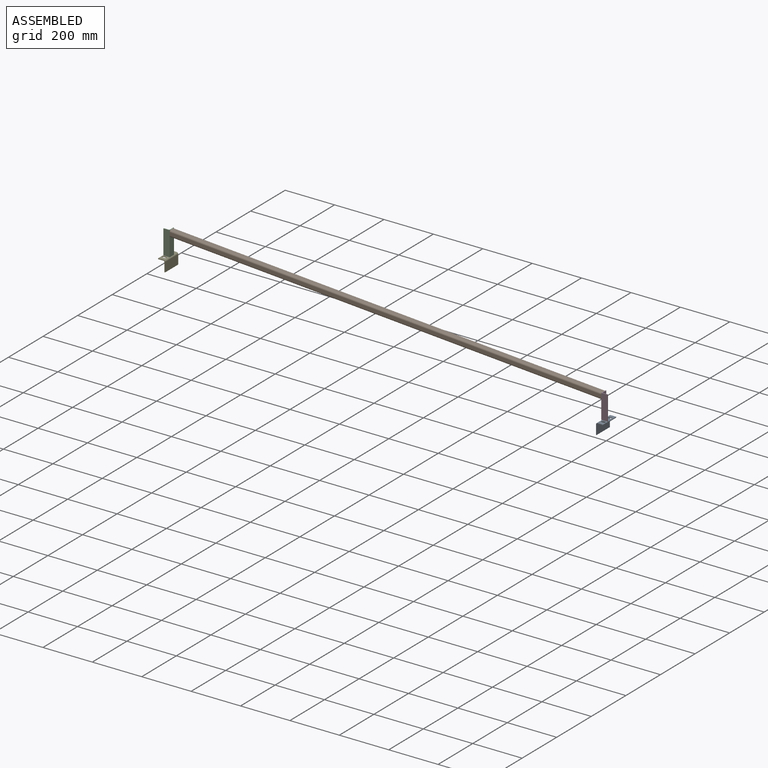
[diagram: assembled view]
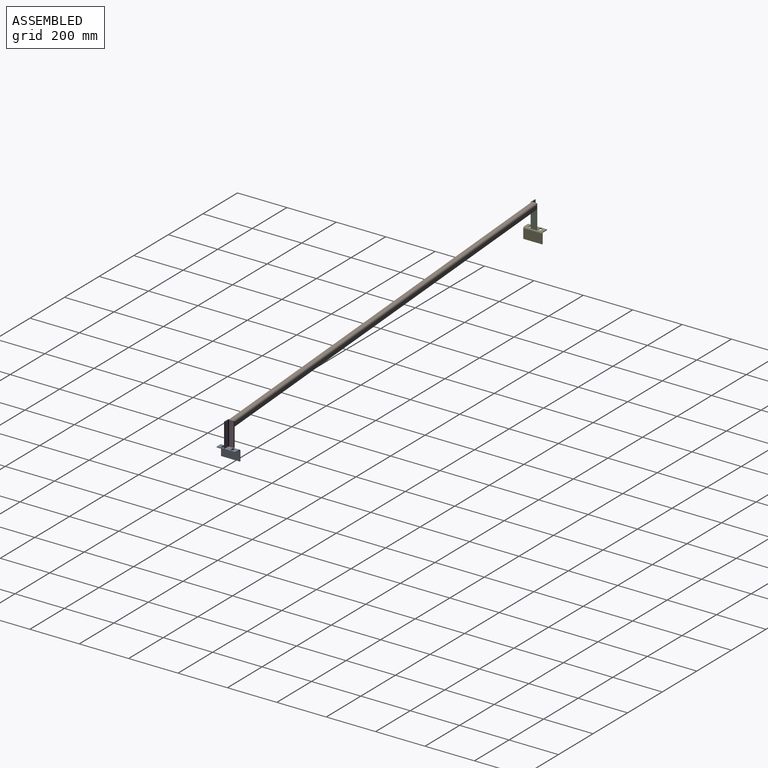
[diagram: assembled view, second angle]
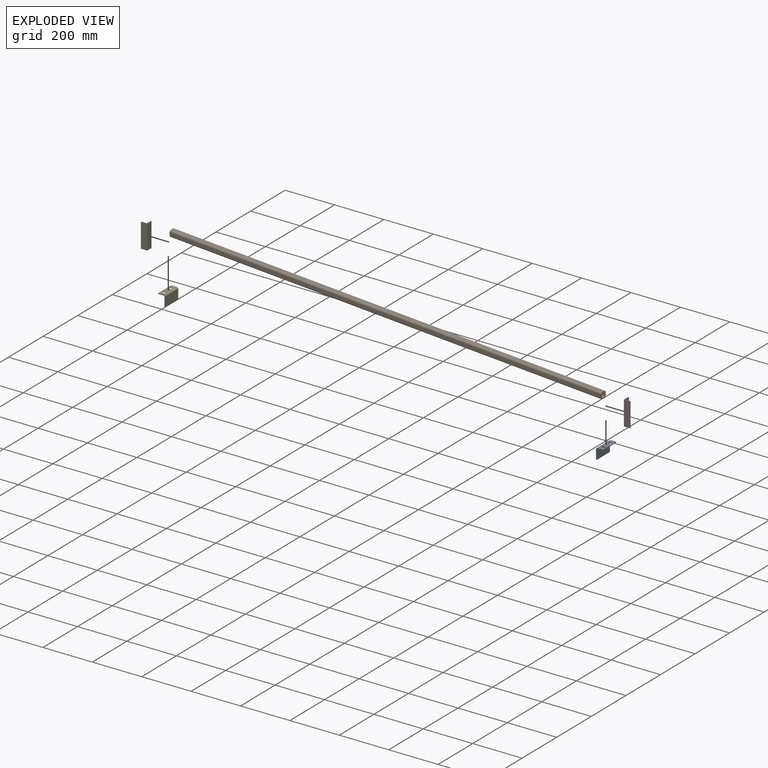
[diagram: exploded view]
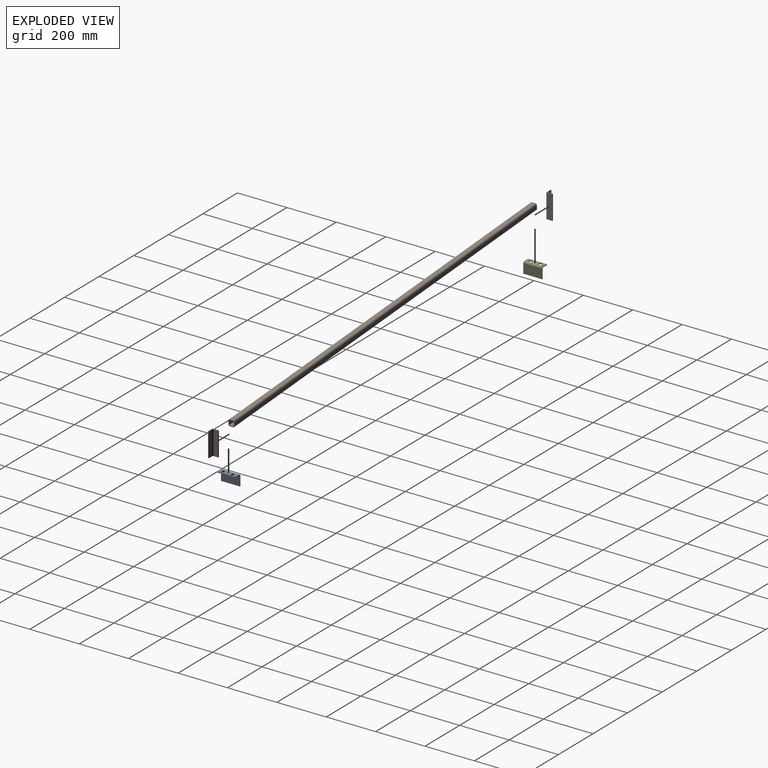
[diagram: exploded view, second angle]
ASSEMBLY  parts=5 mates=4
PART A: 22 faces, bbox 28.4x76.2x44.3 mm
  f0: plane 6.35x3.05mm, normal (0,-1,0), area 19.4mm2, adj f1,f10,f11,f12
  f1: cylinder r=5.08mm len=10.16mm, axis (0,0,1), area 48.6mm2, adj f0,f2,f11,f12
  f2: plane 6.35x3.05mm, normal (0,1,0), area 19.4mm2, adj f1,f10,f11,f12
  f3: plane 6.35x3.05mm, normal (0,-1,0), area 19.4mm2, adj f4,f9,f11,f12
  f4: cylinder r=5.08mm len=10.16mm, axis (0,0,1), area 48.6mm2, adj f3,f5,f11,f12
  f5: plane 6.35x3.05mm, normal (0,1,0), area 19.4mm2, adj f4,f9,f11,f12
  f6: plane 22.23x3.05mm, normal (0,1,0), area 67.7mm2, adj f8,f11,f12,f19
  f7: plane 22.23x3.05mm, normal (0,-1,0), area 67.7mm2, adj f8,f11,f12,f18
  f8: plane 76.2x3.05mm, normal (1,0,0), area 232.3mm2, adj f6,f7,f11,f12
  f9: cylinder r=5.08mm len=10.16mm, axis (0,0,1), area 48.6mm2, adj f3,f5,f11,f12
  f10: cylinder r=5.08mm len=10.16mm, axis (0,0,1), area 48.6mm2, adj f0,f2,f11,f12
  f11: plane 76.2x22.23mm, normal (0,0,1), area 1402.4mm2, adj f0,f1,f2,f3,f4,f5,f6,f7
  f12: plane 76.2x22.23mm, normal (0,0,-1), area 1402.4mm2, adj f0,f1,f2,f3,f4,f5,f6,f7
  f13: plane 38.1x3.05mm, normal (0,1,0), area 116.1mm2, adj f14,f16,f17,f19
  f14: plane 76.2x3.05mm, normal (0,0,-1), area 232.3mm2, adj f13,f15,f16,f17
  f15: plane 38.1x3.05mm, normal (0,-1,0), area 116.1mm2, adj f14,f16,f17,f18
  f16: plane 76.2x38.1mm, normal (-1,0,0), area 2903.2mm2, adj f13,f14,f15,f20
  f17: plane 76.2x38.1mm, normal (1,0,0), area 2903.2mm2, adj f13,f14,f15,f21
  f18: plane 6.22x6.22mm, normal (0,-1,0), area 22.5mm2, adj f7,f15,f20,f21
  f19: plane 6.22x6.22mm, normal (0,1,0), area 22.5mm2, adj f6,f13,f20,f21
  f20: cylinder r=6.22mm len=76.2mm, axis (0,-1,0), area 744.9mm2, adj f11,f16,f18,f19
  f21: cylinder r=3.17mm len=76.2mm, axis (0,-1,0), area 380mm2, adj f12,f17,f18,f19
PART B: 18 faces, bbox 1748.5x25.4x152.7 mm
  f0: plane 25.47x25.4mm, normal (-1,0,0), area 257mm2, adj f2,f3,f4,f5,f6,f7,f8,f9
  f1: plane 25.47x25.4mm, normal (1,0,0), area 257mm2, adj f2,f3,f4,f5,f6,f7,f8,f9
  f2: plane 1747.59x139.95mm, normal (0,-1,0), area 22253.1mm2, adj f0,f1,f3,f17
  f3: cylinder r=6.35mm len=1748.51mm, axis (-1,0,0.07), area 17477.6mm2, adj f0,f1,f2,f4
  f4: plane 1747.59x127.21mm, normal (0.07,0,1), area 22253.1mm2, adj f0,f1,f3,f5
  f5: cylinder r=6.35mm len=1748.51mm, axis (-1,0,0.07), area 17477.6mm2, adj f0,f1,f4,f6
  f6: plane 1747.59x139.95mm, normal (0,1,0), area 22253.1mm2, adj f0,f1,f5,f7
  f7: cylinder r=6.35mm len=1748.51mm, axis (-1,0,0.07), area 17477.6mm2, adj f0,f1,f6,f8
  f8: plane 1747.59x127.21mm, normal (-0.07,0,-1), area 22253.1mm2, adj f0,f1,f7,f17
  f9: plane 1747.59x139.95mm, normal (0,-1,0), area 22253.1mm2, adj f0,f1,f10,f16
  f10: cylinder r=3.17mm len=1748.05mm, axis (-1,0,0.07), area 8738.8mm2, adj f0,f1,f9,f11
  f11: plane 1747.59x127.21mm, normal (-0.07,0,-1), area 22253.1mm2, adj f0,f1,f10,f12
  f12: cylinder r=3.17mm len=1748.05mm, axis (-1,0,0.07), area 8738.8mm2, adj f0,f1,f11,f13
  f13: plane 1747.59x139.95mm, normal (0,1,0), area 22253.1mm2, adj f0,f1,f12,f14
  f14: cylinder r=3.17mm len=1748.05mm, axis (-1,0,0.07), area 8738.8mm2, adj f0,f1,f13,f15
  f15: plane 1747.59x127.21mm, normal (0.07,0,1), area 22253.1mm2, adj f0,f1,f14,f16
  f16: cylinder r=3.17mm len=1748.05mm, axis (-1,0,0.07), area 8738.8mm2, adj f0,f1,f9,f15
  f17: cylinder r=6.35mm len=1748.51mm, axis (-1,0,0.07), area 17477.6mm2, adj f0,f1,f2,f8
PART C: 11 faces, bbox 25.4x25.4x98.4 mm
  f0: cylinder r=3.17mm len=98.43mm, axis (0,0,-1), area 490.9mm2, adj f1,f8,f9,f10
  f1: plane 98.43x17.53mm, normal (1,0,0), area 1725mm2, adj f0,f2,f9,f10
  f2: cylinder r=1.52mm len=98.43mm, axis (0,0,-1), area 235.6mm2, adj f1,f3,f9,f10
  f3: plane 98.43x1.65mm, normal (0,1,0), area 162.5mm2, adj f2,f4,f9,f10
  f4: plane 98.43x25.4mm, normal (-1,0,0), area 2500mm2, adj f3,f5,f9,f10
  f5: plane 98.43x25.4mm, normal (0,-1,0), area 2500mm2, adj f4,f6,f9,f10
  f6: plane 98.43x1.65mm, normal (1,0,0), area 162.5mm2, adj f5,f7,f9,f10
  f7: cylinder r=1.52mm len=98.43mm, axis (0,0,-1), area 235.6mm2, adj f6,f8,f9,f10
  f8: plane 98.43x17.53mm, normal (0,1,0), area 1725mm2, adj f0,f7,f9,f10
  f9: plane 25.4x25.4mm, normal (0,0,1), area 152.4mm2, adj f0,f1,f2,f3,f4,f5,f6,f7
  f10: plane 25.4x25.4mm, normal (0,0,-1), area 152.4mm2, adj f0,f1,f2,f3,f4,f5,f6,f7
PART D: same geometry as C
PART E: same geometry as A
PLACE A at identity fixed
PLACE B at identity
PLACE C rot(axis=(0,-1,0),180deg) t=(-0.01,0,632.04)mm
PLACE D at identity
PLACE E rot(axis=(0,0,-1),180deg) t=(-0.01,609.6,127.21)mm
MATE fastened C.f4 <-> B.f0  axis (1,0,0) through (-873.8,307.97,428.84)mm
MATE fastened D.f4 <-> B.f1  axis (-1,0,0) through (873.79,307.98,301.63)mm
MATE fastened A.f11 <-> D.f10  axis (0,0,1) through (900.78,266.7,203.2)mm
MATE fastened E.f11 <-> C.f9  axis (0,0,1) through (-900.79,266.7,330.41)mm
